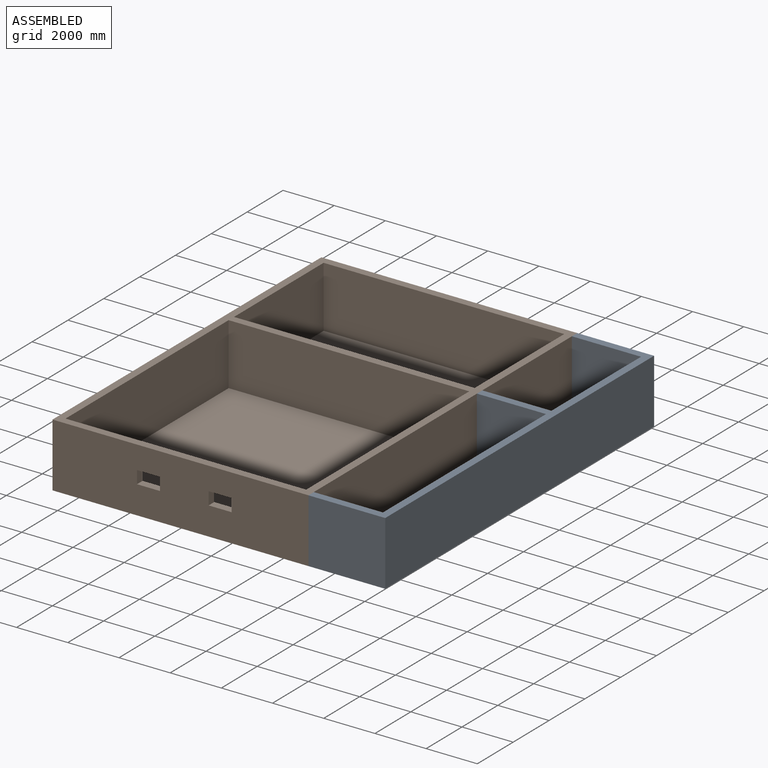
[diagram: assembled view]
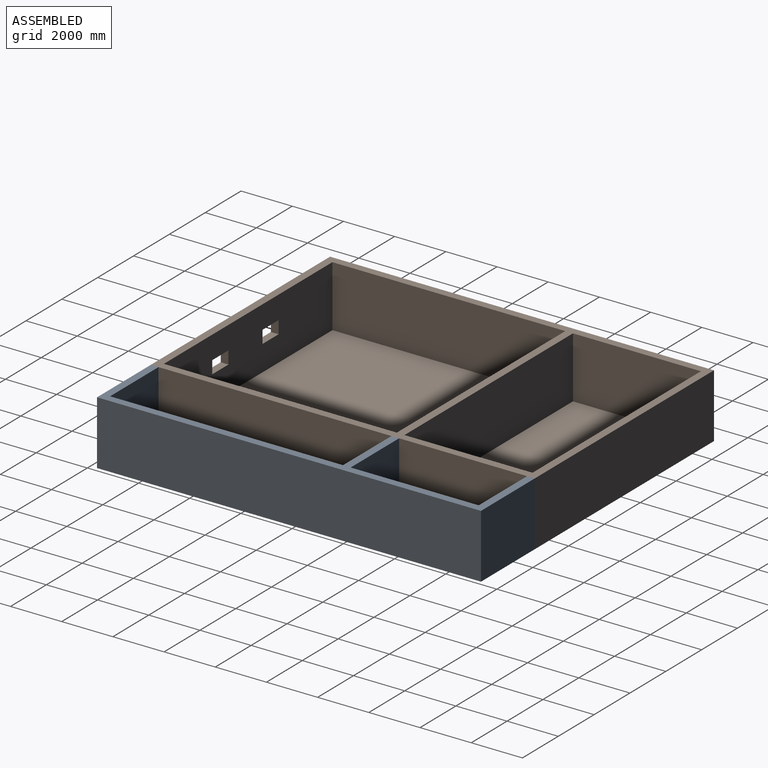
[diagram: assembled view, second angle]
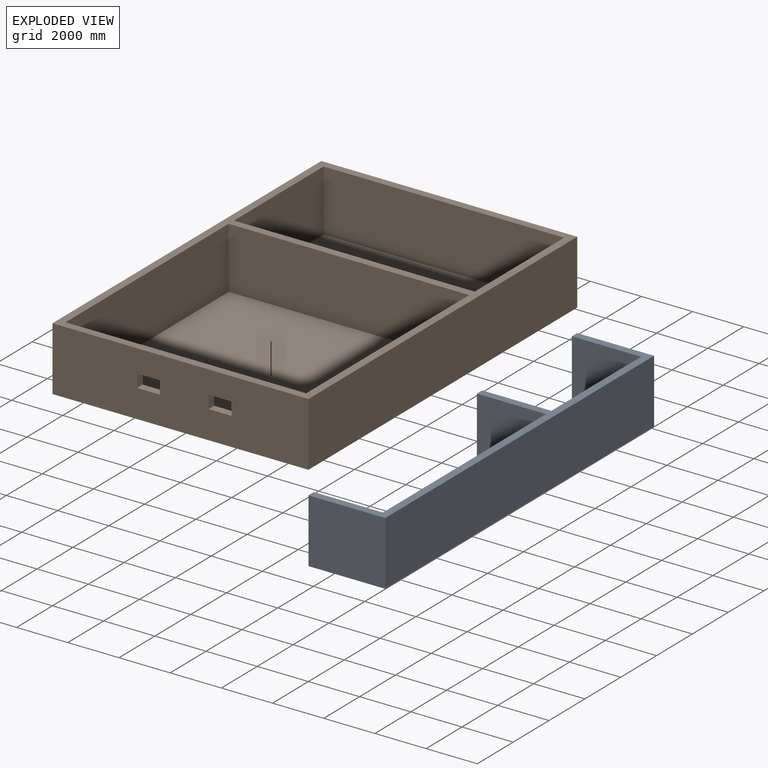
[diagram: exploded view]
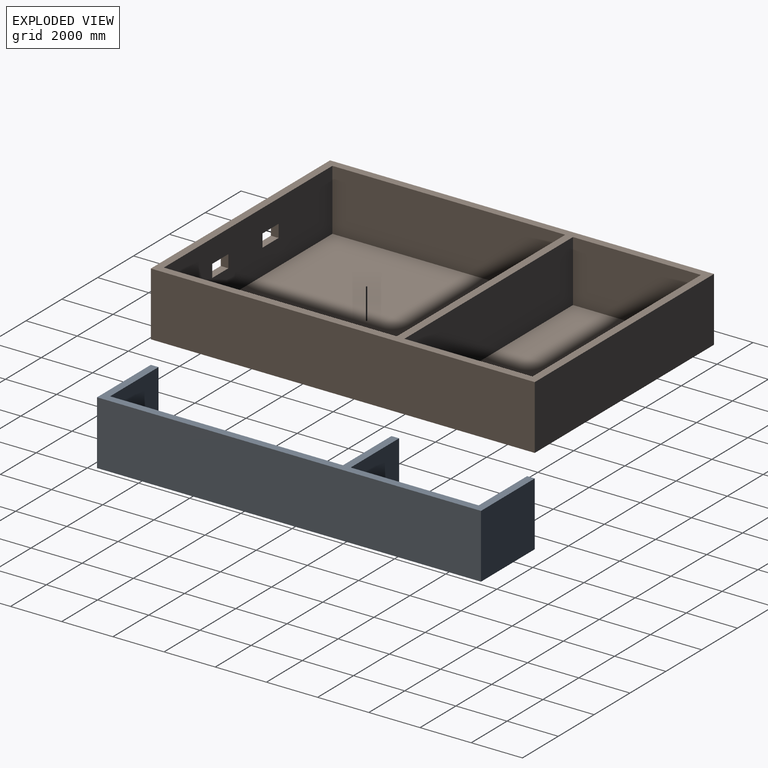
[diagram: exploded view, second angle]
ASSEMBLY  parts=2 mates=3
PART A: 14 faces, bbox 3000x15000x2500 mm
  f0: plane 9100x2700mm, normal (0,0,1), area 24570000mm2, adj f3,f10,f11,f12
  f1: plane 5000x2700mm, normal (0,0,1), area 13500000mm2, adj f3,f7,f8,f9
  f2: plane 3000x2500mm, normal (0,1,0), area 7500000mm2, adj f3,f5,f6,f13
  f3: plane 15000x2500mm, normal (-1,0,0), area 3660000mm2, adj f0,f1,f2,f4,f6,f7,f9,f10
  f4: plane 3000x2500mm, normal (0,-1,0), area 7500000mm2, adj f3,f5,f6,f13
  f5: plane 15000x2500mm, normal (1,0,0), area 37500000mm2, adj f2,f4,f6,f13
  f6: plane 15000x3000mm, normal (0,0,-1), area 45000000mm2, adj f2,f3,f4,f5
  f7: plane 2700x2400mm, normal (0,-1,0), area 6480000mm2, adj f1,f3,f8,f13
  f8: plane 5000x2400mm, normal (-1,0,0), area 12000000mm2, adj f1,f7,f9,f13
  f9: plane 2700x2400mm, normal (0,1,0), area 6480000mm2, adj f1,f3,f8,f13
  f10: plane 2700x2400mm, normal (0,-1,0), area 6480000mm2, adj f0,f3,f11,f13
  f11: plane 9100x2400mm, normal (-1,0,0), area 21840000mm2, adj f0,f10,f12,f13
  f12: plane 2700x2400mm, normal (0,1,0), area 6480000mm2, adj f0,f3,f11,f13
  f13: plane 15000x3000mm, normal (0,0,1), area 6930000mm2, adj f2,f3,f4,f5,f7,f8,f9,f10
PART B: 24 faces, bbox 10000x15000x2500 mm
  f0: plane 10000x2500mm, normal (0,-1,0), area 24100000mm2, adj f3,f4,f5,f13,f16,f17,f18,f19
  f1: plane 9400x2400mm, normal (0,1,0), area 21660000mm2, adj f9,f10,f13,f14,f16,f17,f18,f19
  f2: plane 10000x2500mm, normal (0,1,0), area 25000000mm2, adj f3,f4,f5,f13
  f3: plane 15000x2500mm, normal (-1,0,0), area 37500000mm2, adj f0,f2,f5,f13
  f4: plane 15000x2500mm, normal (1,0,0), area 37500000mm2, adj f0,f2,f5,f13
  f5: plane 15000x10000mm, normal (0,0,-1), area 150000000mm2, adj f0,f2,f3,f4
  f6: plane 5000x2400mm, normal (1,0,0), area 12000000mm2, adj f7,f11,f13,f15
  f7: plane 9400x2400mm, normal (0,-1,0), area 22560000mm2, adj f6,f8,f13,f15
  f8: plane 5000x2400mm, normal (-1,0,0), area 12000000mm2, adj f7,f11,f13,f15
  f9: plane 9100x2400mm, normal (-1,0,0), area 21840000mm2, adj f1,f12,f13,f14
  f10: plane 9100x2400mm, normal (1,0,0), area 21840000mm2, adj f1,f12,f13,f14
  f11: plane 9400x2400mm, normal (0,1,0), area 22560000mm2, adj f6,f8,f13,f15
  f12: plane 9400x2400mm, normal (0,-1,0), area 22560000mm2, adj f9,f10,f13,f14
  f13: plane 15000x10000mm, normal (0,0,1), area 17460000mm2, adj f0,f1,f2,f3,f4,f6,f7,f8
  f14: plane 9400x9100mm, normal (0,0,1), area 85540000mm2, adj f1,f9,f10,f12
  f15: plane 9400x5000mm, normal (0,0,1), area 47000000mm2, adj f6,f7,f8,f11
  f16: plane 900x300mm, normal (0,0,-1), area 270000mm2, adj f0,f1,f17,f18
  f17: plane 500x300mm, normal (-1,0,0), area 150000mm2, adj f0,f1,f16,f19
  f18: plane 500x300mm, normal (1,0,0), area 150000mm2, adj f0,f1,f16,f19
  f19: plane 900x300mm, normal (0,0,1), area 270000mm2, adj f0,f1,f17,f18
  f20: plane 900x300mm, normal (0,0,-1), area 270000mm2, adj f0,f1,f21,f23
  f21: plane 500x300mm, normal (1,0,0), area 150000mm2, adj f0,f1,f20,f22
  f22: plane 900x300mm, normal (0,0,1), area 270000mm2, adj f0,f1,f21,f23
  f23: plane 500x300mm, normal (-1,0,0), area 150000mm2, adj f0,f1,f20,f22
PLACE A t=(11358.55,-1368.45,2440.66)mm
PLACE B t=(7497.83,13549.62,2440.66)mm fixed
MATE planar B.f14 <-> A.f1  axis (0,0,1) through (6358.55,3481.55,2540.66)mm
MATE planar A.f3 <-> B.f4  axis (-1,0,0) through (11358.55,6534.83,3228.37)mm
MATE planar A.f4 <-> B.f0  axis (0,-1,0) through (12858.55,-1368.45,3690.66)mm
